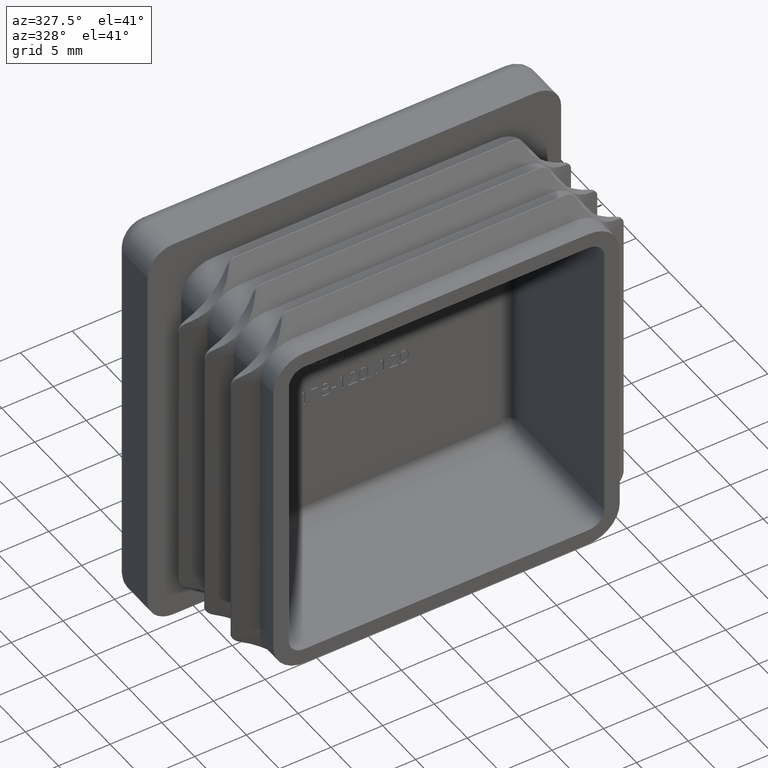
[diagram: clean part render]
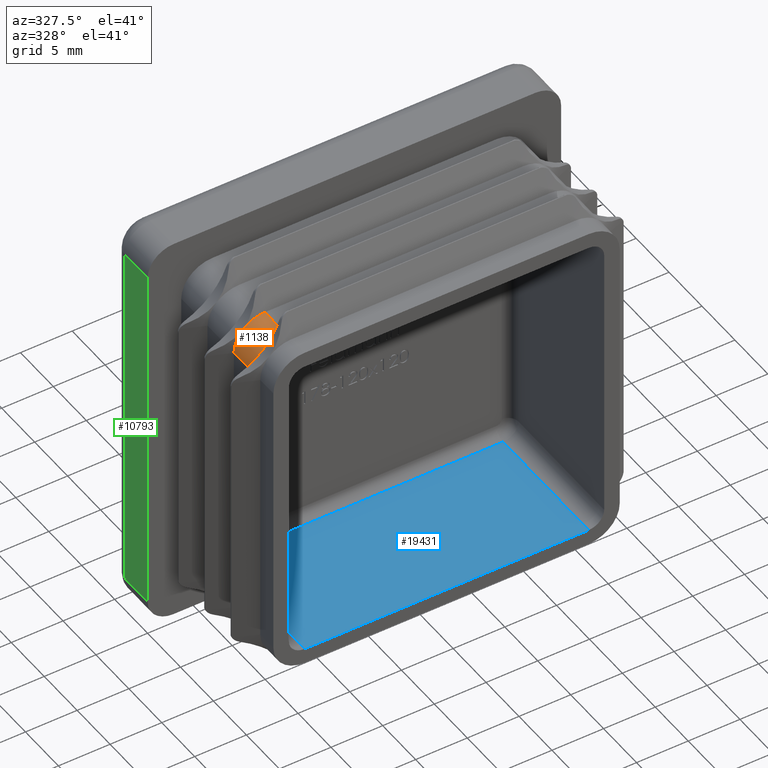
[diagram: same view with three faces highlighted in distinct colors, each labeled with its STEP entity id]
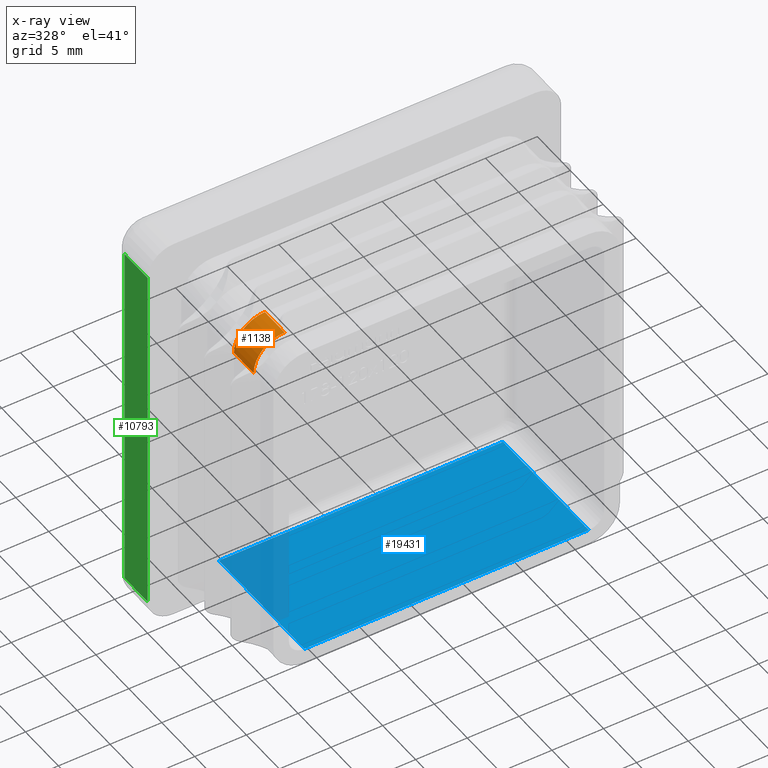
[diagram: x-ray of the same camera — body ghosted, the three highlighted faces saturated]
A machine part, auxiliary view with three faces highlighted in distinct colors.
The next image is the same camera in x-ray (body ghosted, the three faces saturated) — at least one of them is partly hidden behind the body in this view.
Their STEP definitions:

[orange] entity #1138 — the highlighted cylindrical surface (partial cylindrical patch) has radius 3 mm, axis along (-0, 1, -0).
#248 = AXIS2_PLACEMENT_3D ( 'NONE', #12279, #13632, #2838 ) ;
#409 = VECTOR ( 'NONE', #9372, 1000.000000000000000 ) ;
#697 = ORIENTED_EDGE ( 'NONE', *, *, #8461, .F. ) ;
#1138 = ADVANCED_FACE ( 'NONE', ( #8308 ), #18860, .T. ) ;
#2107 = DIRECTION ( 'NONE',  ( -0.000000000000000000, 1.000000000000000000, -0.000000000000000000 ) ) ;
#2336 = CIRCLE ( 'NONE', #248, 3.000000000000030198 ) ;
#2347 = ORIENTED_EDGE ( 'NONE', *, *, #8215, .T. ) ;
#2349 = CARTESIAN_POINT ( 'NONE',  ( -13.75000000000001243, -8.000000000000001776, 13.74999999999998757 ) ) ;
#2838 = DIRECTION ( 'NONE',  ( -1.000000000000000000, 0.000000000000000000, 0.000000000000000000 ) ) ;
#2975 = EDGE_CURVE ( 'NONE', #20011, #19419, #20122, .T. ) ;
#3333 = EDGE_CURVE ( 'NONE', #5673, #6557, #18162, .T. ) ;
#3945 = DIRECTION ( 'NONE',  ( 0.000000000000000000, 1.000000000000000000, 0.000000000000000000 ) ) ;
#4460 = VERTEX_POINT ( 'NONE', #15227 ) ;
#4645 = DIRECTION ( 'NONE',  ( 0.000000000000000000, 1.000000000000000000, 0.000000000000000000 ) ) ;
#5024 = CARTESIAN_POINT ( 'NONE',  ( -13.75000000000000888, -14.00000000000000000, 13.74999999999998757 ) ) ;
#5053 = ORIENTED_EDGE ( 'NONE', *, *, #15817, .T. ) ;
#5082 = VECTOR ( 'NONE', #2107, 1000.000000000000000 ) ;
#5421 = CIRCLE ( 'NONE', #16387, 3.000000000000068390 ) ;
#5499 = VERTEX_POINT ( 'NONE', #8321 ) ;
#5520 = DIRECTION ( 'NONE',  ( -1.000000000000000000, 0.000000000000000000, 0.000000000000000000 ) ) ;
#5673 = VERTEX_POINT ( 'NONE', #5674 ) ;
#5674 = CARTESIAN_POINT ( 'NONE',  ( -16.75000000000000000, -11.00000000000000178, 13.74999999999998757 ) ) ;
#6557 = VERTEX_POINT ( 'NONE', #20088 ) ;
#6657 = DIRECTION ( 'NONE',  ( -0.000000000000000000, 1.000000000000000000, -0.000000000000000000 ) ) ;
#6964 = CARTESIAN_POINT ( 'NONE',  ( -15.87132034355966859, -11.00000000000000178, 15.87132034355971655 ) ) ;
#7014 = DIRECTION ( 'NONE',  ( -1.000000000000000000, 0.000000000000000000, 0.000000000000000000 ) ) ;
#8206 = DIRECTION ( 'NONE',  ( 0.000000000000000000, 0.000000000000000000, 1.000000000000000000 ) ) ;
#8215 = EDGE_CURVE ( 'NONE', #19419, #5499, #15445, .T. ) ;
#8308 = FACE_OUTER_BOUND ( 'NONE', #11781, .T. ) ;
#8321 = CARTESIAN_POINT ( 'NONE',  ( -13.75000000000000888, -8.000000000000019540, 16.74999999999998224 ) ) ;
#8461 = EDGE_CURVE ( 'NONE', #4460, #5499, #13959, .T. ) ;
#9372 = DIRECTION ( 'NONE',  ( -0.000000000000000000, 1.000000000000000000, -0.000000000000000000 ) ) ;
#9848 = CARTESIAN_POINT ( 'NONE',  ( -13.75000000000000888, -11.00000000000000178, 16.74999999999998224 ) ) ;
#11096 = AXIS2_PLACEMENT_3D ( 'NONE', #2349, #3945, #5520 ) ;
#11353 = EDGE_CURVE ( 'NONE', #6557, #4460, #2336, .T. ) ;
#11781 = EDGE_LOOP ( 'NONE', ( #697, #16327, #16526, #5053, #19664, #2347 ) ) ;
#12279 = CARTESIAN_POINT ( 'NONE',  ( -13.75000000000001243, -8.000000000000001776, 13.74999999999998757 ) ) ;
#13632 = DIRECTION ( 'NONE',  ( 0.000000000000000000, 1.000000000000000000, 0.000000000000000000 ) ) ;
#13959 = CIRCLE ( 'NONE', #11096, 3.000000000000030198 ) ;
#14061 = CARTESIAN_POINT ( 'NONE',  ( -13.75000000000001243, -11.00000000000000178, 13.74999999999998757 ) ) ;
#15099 = AXIS2_PLACEMENT_3D ( 'NONE', #14061, #4645, #15660 ) ;
#15121 = CARTESIAN_POINT ( 'NONE',  ( -13.75000000000001243, -11.00000000000000178, 13.74999999999998757 ) ) ;
#15227 = CARTESIAN_POINT ( 'NONE',  ( -15.87132034355962595, -8.000000000000010658, 15.87132034355967569 ) ) ;
#15445 = LINE ( 'NONE', #18767, #409 ) ;
#15660 = DIRECTION ( 'NONE',  ( -1.000000000000000000, 0.000000000000000000, 0.000000000000000000 ) ) ;
#15817 = EDGE_CURVE ( 'NONE', #5673, #20011, #5421, .T. ) ;
#16162 = CARTESIAN_POINT ( 'NONE',  ( -16.75000000000000000, -14.00000000000000000, 13.74999999999998757 ) ) ;
#16327 = ORIENTED_EDGE ( 'NONE', *, *, #11353, .F. ) ;
#16387 = AXIS2_PLACEMENT_3D ( 'NONE', #15121, #16710, #7014 ) ;
#16526 = ORIENTED_EDGE ( 'NONE', *, *, #3333, .F. ) ;
#16710 = DIRECTION ( 'NONE',  ( 0.000000000000000000, 1.000000000000000000, 0.000000000000000000 ) ) ;
#18162 = LINE ( 'NONE', #16162, #5082 ) ;
#18767 = CARTESIAN_POINT ( 'NONE',  ( -13.75000000000000888, -14.00000000000000000, 16.74999999999998224 ) ) ;
#18860 = CYLINDRICAL_SURFACE ( 'NONE', #20346, 2.999999999999995559 ) ;
#19419 = VERTEX_POINT ( 'NONE', #9848 ) ;
#19664 = ORIENTED_EDGE ( 'NONE', *, *, #2975, .T. ) ;
#20011 = VERTEX_POINT ( 'NONE', #6964 ) ;
#20088 = CARTESIAN_POINT ( 'NONE',  ( -16.75000000000000000, -8.000000000000015987, 13.74999999999998757 ) ) ;
#20122 = CIRCLE ( 'NONE', #15099, 3.000000000000068390 ) ;
#20346 = AXIS2_PLACEMENT_3D ( 'NONE', #5024, #6657, #8206 ) ;

[blue] entity #19431 — the highlighted planar face has unit normal (-0, 0, 1).
#388 = VECTOR ( 'NONE', #15790, 1000.000000000000000 ) ;
#1935 = LINE ( 'NONE', #17530, #4446 ) ;
#3120 = CARTESIAN_POINT ( 'NONE',  ( 13.75000000000000533, -0.9999999999999991118, -15.25000000000000711 ) ) ;
#3542 = DIRECTION ( 'NONE',  ( -1.000000000000000000, -0.000000000000000000, -0.000000000000000000 ) ) ;
#3630 = VERTEX_POINT ( 'NONE', #3120 ) ;
#4446 = VECTOR ( 'NONE', #3542, 1000.000000000000000 ) ;
#5561 = CARTESIAN_POINT ( 'NONE',  ( -13.74999999999999112, -14.00000000000000000, -15.25000000000000711 ) ) ;
#5902 = DIRECTION ( 'NONE',  ( 1.000000000000000000, 0.000000000000000000, 0.000000000000000000 ) ) ;
#6098 = VERTEX_POINT ( 'NONE', #13626 ) ;
#6367 = PLANE ( 'NONE',  #12859 ) ;
#7154 = ORIENTED_EDGE ( 'NONE', *, *, #9569, .T. ) ;
#7841 = ORIENTED_EDGE ( 'NONE', *, *, #17366, .F. ) ;
#9311 = CARTESIAN_POINT ( 'NONE',  ( 13.75000000000000533, -14.00000000000000000, -15.25000000000000711 ) ) ;
#9569 = EDGE_CURVE ( 'NONE', #11162, #3630, #15894, .T. ) ;
#11162 = VERTEX_POINT ( 'NONE', #14815 ) ;
#11208 = CARTESIAN_POINT ( 'NONE',  ( -13.74999999999999112, -14.00000000000000000, -15.25000000000000711 ) ) ;
#11482 = ORIENTED_EDGE ( 'NONE', *, *, #12046, .T. ) ;
#12046 = EDGE_CURVE ( 'NONE', #14368, #11162, #18834, .T. ) ;
#12526 = VECTOR ( 'NONE', #18563, 1000.000000000000000 ) ;
#12696 = DIRECTION ( 'NONE',  ( -0.000000000000000000, 0.000000000000000000, 1.000000000000000000 ) ) ;
#12761 = DIRECTION ( 'NONE',  ( 1.000000000000000000, 0.000000000000000000, 0.000000000000000000 ) ) ;
#12859 = AXIS2_PLACEMENT_3D ( 'NONE', #11208, #12696, #12761 ) ;
#13526 = CARTESIAN_POINT ( 'NONE',  ( -13.74999999999999112, -14.00000000000000000, -15.25000000000000711 ) ) ;
#13626 = CARTESIAN_POINT ( 'NONE',  ( -13.74999999999999112, -0.9999999999999991118, -15.25000000000000711 ) ) ;
#13714 = CARTESIAN_POINT ( 'NONE',  ( -13.74999999999999112, -14.00000000000000000, -15.25000000000000711 ) ) ;
#13913 = EDGE_LOOP ( 'NONE', ( #7154, #19011, #7841, #11482 ) ) ;
#14368 = VERTEX_POINT ( 'NONE', #5561 ) ;
#14815 = CARTESIAN_POINT ( 'NONE',  ( 13.75000000000000533, -14.00000000000000000, -15.25000000000000711 ) ) ;
#15790 = DIRECTION ( 'NONE',  ( -0.000000000000000000, 1.000000000000000000, -0.000000000000000000 ) ) ;
#15894 = LINE ( 'NONE', #9311, #388 ) ;
#16089 = EDGE_CURVE ( 'NONE', #3630, #6098, #1935, .T. ) ;
#16714 = LINE ( 'NONE', #13714, #12526 ) ;
#17366 = EDGE_CURVE ( 'NONE', #14368, #6098, #16714, .T. ) ;
#17530 = CARTESIAN_POINT ( 'NONE',  ( -13.74999999999999112, -0.9999999999999991118, -15.25000000000000711 ) ) ;
#17839 = VECTOR ( 'NONE', #5902, 1000.000000000000000 ) ;
#18554 = FACE_OUTER_BOUND ( 'NONE', #13913, .T. ) ;
#18563 = DIRECTION ( 'NONE',  ( -0.000000000000000000, 1.000000000000000000, -0.000000000000000000 ) ) ;
#18834 = LINE ( 'NONE', #13526, #17839 ) ;
#19011 = ORIENTED_EDGE ( 'NONE', *, *, #16089, .T. ) ;
#19431 = ADVANCED_FACE ( 'NONE', ( #18554 ), #6367, .T. ) ;

[green] entity #10793 — the highlighted planar face has unit normal (1, 0, -0).
#281 = VECTOR ( 'NONE', #7313, 1000.000000000000000 ) ;
#1758 = DIRECTION ( 'NONE',  ( 0.000000000000000000, -1.000000000000000000, 0.000000000000000000 ) ) ;
#2329 = EDGE_LOOP ( 'NONE', ( #18566, #6200, #7556, #5826 ) ) ;
#2613 = VERTEX_POINT ( 'NONE', #6579 ) ;
#3697 = EDGE_CURVE ( 'NONE', #19536, #8913, #14415, .T. ) ;
#3851 = CARTESIAN_POINT ( 'NONE',  ( -20.00000000000000000, 3.500000000000000000, -17.50000000000000000 ) ) ;
#5826 = ORIENTED_EDGE ( 'NONE', *, *, #7026, .T. ) ;
#6200 = ORIENTED_EDGE ( 'NONE', *, *, #3697, .T. ) ;
#6347 = CARTESIAN_POINT ( 'NONE',  ( -19.99999999999999289, 0.000000000000000000, 17.50000000000000355 ) ) ;
#6579 = CARTESIAN_POINT ( 'NONE',  ( -20.00000000000000000, 0.000000000000000000, -17.50000000000000000 ) ) ;
#7026 = EDGE_CURVE ( 'NONE', #2613, #15232, #15960, .T. ) ;
#7313 = DIRECTION ( 'NONE',  ( -0.000000000000000000, 1.000000000000000000, -0.000000000000000000 ) ) ;
#7556 = ORIENTED_EDGE ( 'NONE', *, *, #14139, .T. ) ;
#8194 = VECTOR ( 'NONE', #1758, 1000.000000000000000 ) ;
#8863 = CARTESIAN_POINT ( 'NONE',  ( -19.99999999999999289, 5.000000000000000000, 17.50000000000000355 ) ) ;
#8913 = VERTEX_POINT ( 'NONE', #3851 ) ;
#10194 = CARTESIAN_POINT ( 'NONE',  ( -20.00000000000000000, 5.000000000000000000, -20.00000000000000000 ) ) ;
#10793 = ADVANCED_FACE ( 'NONE', ( #12909 ), #19588, .F. ) ;
#11248 = VECTOR ( 'NONE', #17302, 1000.000000000000000 ) ;
#11545 = CARTESIAN_POINT ( 'NONE',  ( -19.99999999999999289, 3.500000000000000000, 17.50000000000000355 ) ) ;
#12653 = AXIS2_PLACEMENT_3D ( 'NONE', #10194, #17157, #18621 ) ;
#12726 = CARTESIAN_POINT ( 'NONE',  ( -20.00000000000000000, 5.000000000000000000, -17.50000000000000000 ) ) ;
#12909 = FACE_OUTER_BOUND ( 'NONE', #2329, .T. ) ;
#13987 = EDGE_CURVE ( 'NONE', #15232, #19536, #19018, .T. ) ;
#14139 = EDGE_CURVE ( 'NONE', #8913, #2613, #18550, .T. ) ;
#14415 = LINE ( 'NONE', #15718, #11248 ) ;
#14968 = VECTOR ( 'NONE', #20268, 1000.000000000000000 ) ;
#15232 = VERTEX_POINT ( 'NONE', #6347 ) ;
#15718 = CARTESIAN_POINT ( 'NONE',  ( -20.00000000000000000, 3.500000000000000000, -17.50000000000000000 ) ) ;
#15960 = LINE ( 'NONE', #20201, #14968 ) ;
#17157 = DIRECTION ( 'NONE',  ( 1.000000000000000000, 0.000000000000000000, -1.734723475976807094E-16 ) ) ;
#17302 = DIRECTION ( 'NONE',  ( -1.734723475976807094E-16, -0.000000000000000000, -1.000000000000000000 ) ) ;
#18550 = LINE ( 'NONE', #12726, #8194 ) ;
#18566 = ORIENTED_EDGE ( 'NONE', *, *, #13987, .T. ) ;
#18621 = DIRECTION ( 'NONE',  ( -1.734723475976807094E-16, 0.000000000000000000, -1.000000000000000000 ) ) ;
#19018 = LINE ( 'NONE', #8863, #281 ) ;
#19536 = VERTEX_POINT ( 'NONE', #11545 ) ;
#19588 = PLANE ( 'NONE',  #12653 ) ;
#20201 = CARTESIAN_POINT ( 'NONE',  ( -20.00000000000000000, 0.000000000000000000, -20.00000000000000000 ) ) ;
#20268 = DIRECTION ( 'NONE',  ( 1.734723475976807094E-16, 0.000000000000000000, 1.000000000000000000 ) ) ;